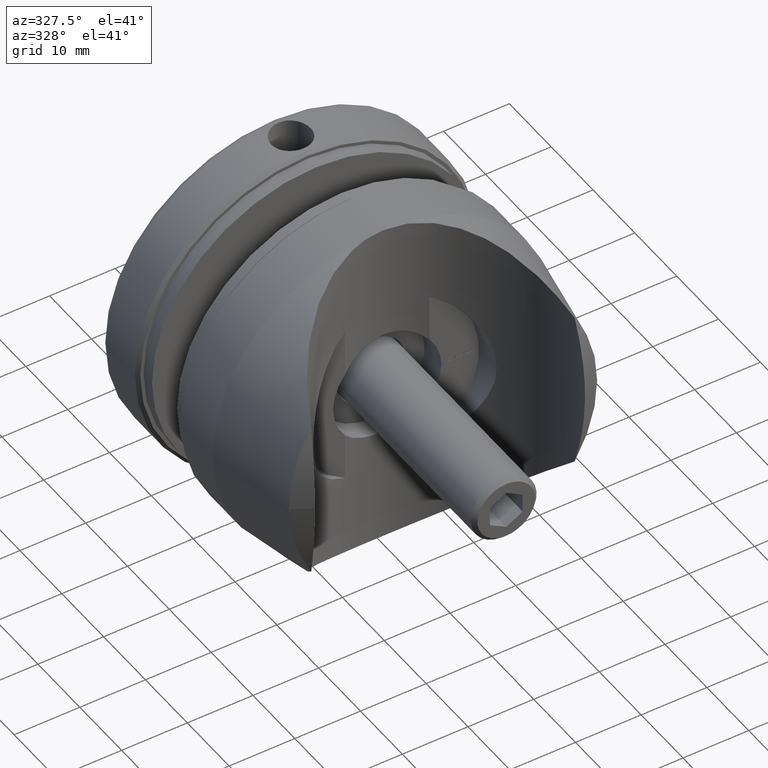
[diagram: clean part render]
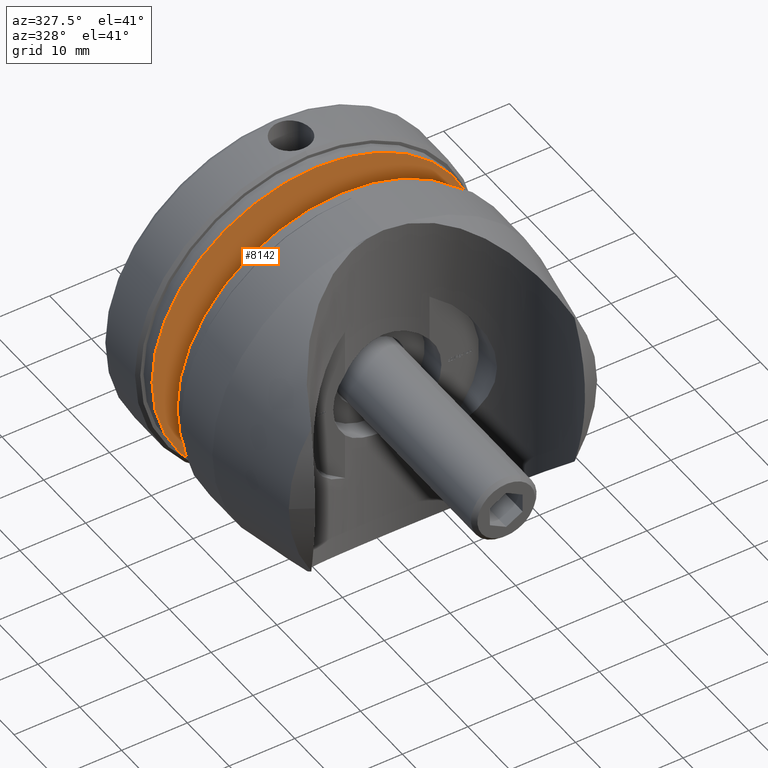
[diagram: same view with one face highlighted and labeled with its STEP entity id]
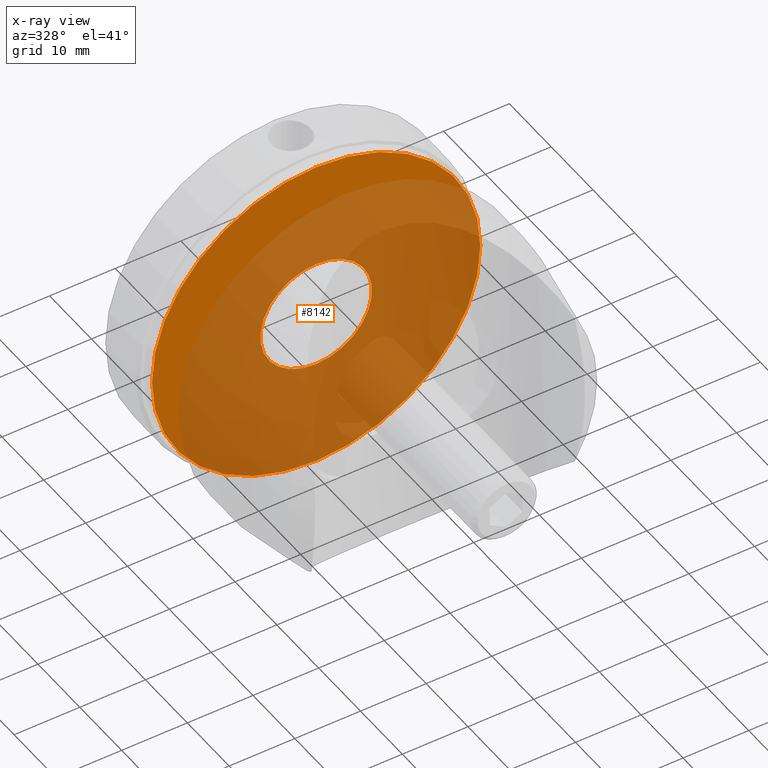
[diagram: x-ray of the same camera — body ghosted, the highlighted face saturated]
A machine part, auxiliary view. The second image highlights one B-rep face of the part: STEP entity #8142.
The next image is the same camera in x-ray: the body ghosted, the highlighted face saturated — about 78% of this face is hidden behind the body in this view.
In plain terms, the highlighted planar face has unit normal (0, 1, 0).
Its self-contained STEP definition (entity closure, byte-faithful):
#246 = CARTESIAN_POINT ( 'NONE',  ( 5.457486406938542366E-16, -2.000000000000000000, 25.00000000000000000 ) ) ;
#384 = EDGE_CURVE ( 'NONE', #10733, #3765, #7414, .T. ) ;
#457 = EDGE_LOOP ( 'NONE', ( #6603, #10604 ) ) ;
#1327 = AXIS2_PLACEMENT_3D ( 'NONE', #5271, #2993, #2944 ) ;
#1601 = CARTESIAN_POINT ( 'NONE',  ( 3.607365638562237181E-15, -2.000000000000000000, -25.00000000000000000 ) ) ;
#1686 = ORIENTED_EDGE ( 'NONE', *, *, #7775, .F. ) ;
#1734 = CARTESIAN_POINT ( 'NONE',  ( 5.457486406938542366E-16, -2.000000000000000000, 0.000000000000000000 ) ) ;
#1894 = AXIS2_PLACEMENT_3D ( 'NONE', #1734, #10285, #7785 ) ;
#1946 = CARTESIAN_POINT ( 'NONE',  ( 1.586698419969104475E-15, -2.000000000000000000, -8.500000000000000000 ) ) ;
#2458 = PLANE ( 'NONE',  #10439 ) ;
#2944 = DIRECTION ( 'NONE',  ( 0.000000000000000000, 0.000000000000000000, 1.000000000000000000 ) ) ;
#2993 = DIRECTION ( 'NONE',  ( -0.000000000000000000, 1.000000000000000000, -0.000000000000000000 ) ) ;
#3554 = EDGE_LOOP ( 'NONE', ( #1686, #4754 ) ) ;
#3684 = CARTESIAN_POINT ( 'NONE',  ( 8.500000000000000000, -2.000000000000000000, 0.000000000000000000 ) ) ;
#3765 = VERTEX_POINT ( 'NONE', #11828 ) ;
#4754 = ORIENTED_EDGE ( 'NONE', *, *, #384, .F. ) ;
#5161 = CIRCLE ( 'NONE', #1327, 8.500000000000000000 ) ;
#5271 = CARTESIAN_POINT ( 'NONE',  ( 5.457486406938542366E-16, -2.000000000000000000, 0.000000000000000000 ) ) ;
#5401 = DIRECTION ( 'NONE',  ( -0.000000000000000000, 1.000000000000000000, -0.000000000000000000 ) ) ;
#6091 = VERTEX_POINT ( 'NONE', #246 ) ;
#6603 = ORIENTED_EDGE ( 'NONE', *, *, #14466, .T. ) ;
#6761 = CARTESIAN_POINT ( 'NONE',  ( 5.457486406938542366E-16, -2.000000000000000000, 0.000000000000000000 ) ) ;
#6853 = VERTEX_POINT ( 'NONE', #1601 ) ;
#7127 = CIRCLE ( 'NONE', #7573, 25.00000000000000000 ) ;
#7302 = DIRECTION ( 'NONE',  ( 0.000000000000000000, -0.000000000000000000, -1.000000000000000000 ) ) ;
#7414 = CIRCLE ( 'NONE', #13181, 8.500000000000000000 ) ;
#7573 = AXIS2_PLACEMENT_3D ( 'NONE', #6761, #10504, #9325 ) ;
#7775 = EDGE_CURVE ( 'NONE', #3765, #10733, #5161, .T. ) ;
#7785 = DIRECTION ( 'NONE',  ( 0.000000000000000000, 0.000000000000000000, 1.000000000000000000 ) ) ;
#8142 = ADVANCED_FACE ( 'NONE', ( #12827, #9183 ), #2458, .F. ) ;
#9183 = FACE_OUTER_BOUND ( 'NONE', #457, .T. ) ;
#9325 = DIRECTION ( 'NONE',  ( 0.000000000000000000, 0.000000000000000000, 1.000000000000000000 ) ) ;
#9584 = DIRECTION ( 'NONE',  ( 0.000000000000000000, -1.000000000000000000, 0.000000000000000000 ) ) ;
#10285 = DIRECTION ( 'NONE',  ( -0.000000000000000000, 1.000000000000000000, -0.000000000000000000 ) ) ;
#10439 = AXIS2_PLACEMENT_3D ( 'NONE', #3684, #9584, #7302 ) ;
#10504 = DIRECTION ( 'NONE',  ( -0.000000000000000000, 1.000000000000000000, -0.000000000000000000 ) ) ;
#10604 = ORIENTED_EDGE ( 'NONE', *, *, #12104, .T. ) ;
#10733 = VERTEX_POINT ( 'NONE', #1946 ) ;
#11828 = CARTESIAN_POINT ( 'NONE',  ( 5.457486406938542366E-16, -2.000000000000000000, 8.500000000000000000 ) ) ;
#12104 = EDGE_CURVE ( 'NONE', #6853, #6091, #13075, .T. ) ;
#12827 = FACE_BOUND ( 'NONE', #3554, .T. ) ;
#13075 = CIRCLE ( 'NONE', #1894, 25.00000000000000000 ) ;
#13181 = AXIS2_PLACEMENT_3D ( 'NONE', #14088, #5401, #13976 ) ;
#13976 = DIRECTION ( 'NONE',  ( 0.000000000000000000, 0.000000000000000000, 1.000000000000000000 ) ) ;
#14088 = CARTESIAN_POINT ( 'NONE',  ( 5.457486406938542366E-16, -2.000000000000000000, 0.000000000000000000 ) ) ;
#14466 = EDGE_CURVE ( 'NONE', #6091, #6853, #7127, .T. ) ;